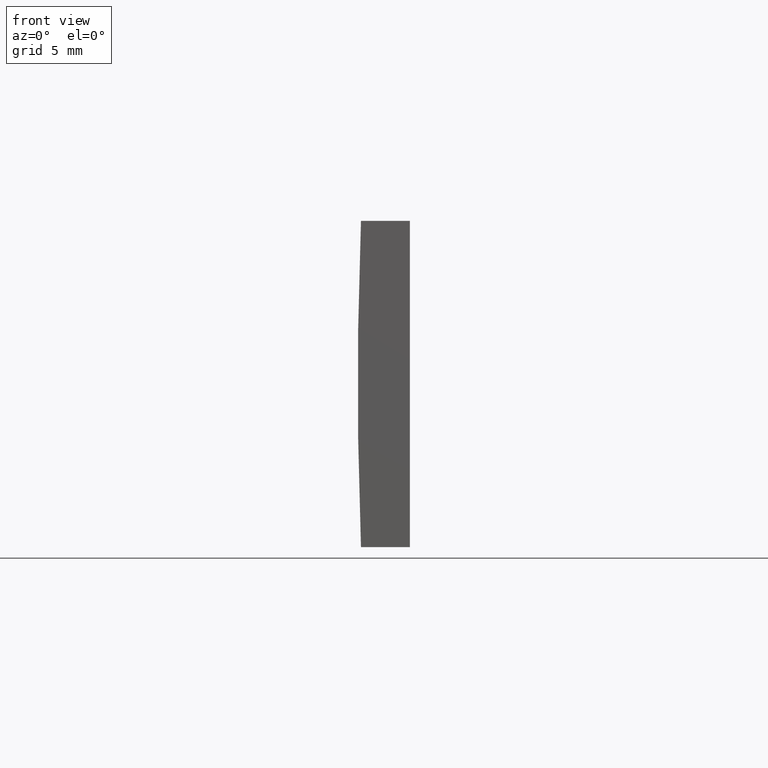
[diagram: clean part render]
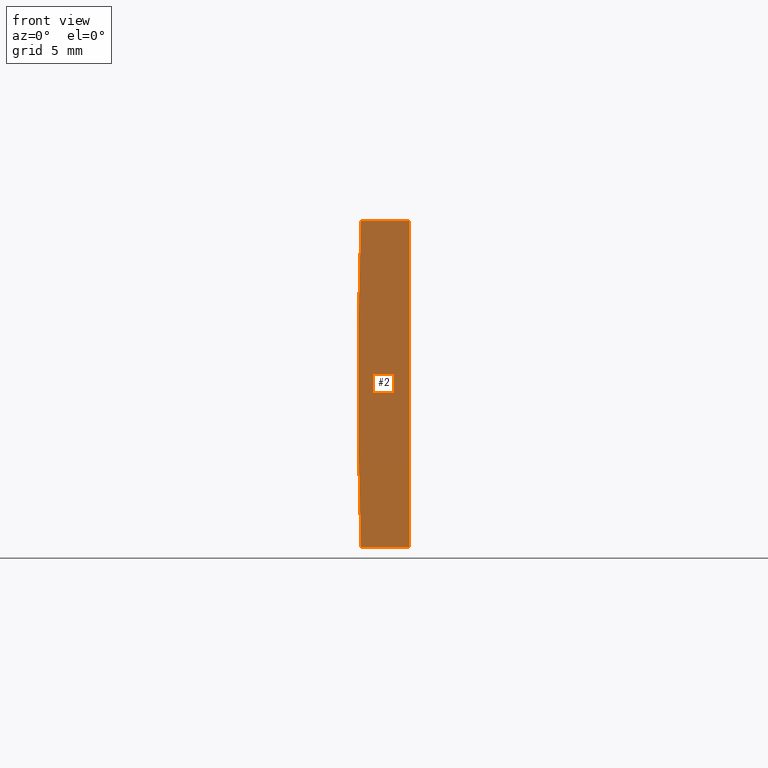
[diagram: same view with one face highlighted and labeled with its STEP entity id]
A machine part, front view. The second image highlights one B-rep face of the part: STEP entity #2.
In plain terms, the highlighted planar face has unit normal (0, 1, 0).
Its self-contained STEP definition (entity closure, byte-faithful):
#2 = ADVANCED_FACE ( 'NONE', ( #165 ), #25, .F. ) ;
#7 = VECTOR ( 'NONE', #144, 1000.000000000000000 ) ;
#11 = ORIENTED_EDGE ( 'NONE', *, *, #75, .F. ) ;
#12 = EDGE_CURVE ( 'NONE', #54, #113, #101, .T. ) ;
#15 = CARTESIAN_POINT ( 'NONE',  ( 4.355204334851265500, 0.0000000000000000000, 4.286263797015675000E-017 ) ) ;
#21 = LINE ( 'NONE', #35, #7 ) ;
#25 = PLANE ( 'NONE',  #182 ) ;
#35 = CARTESIAN_POINT ( 'NONE',  ( -253.9512996483044300, 0.0000000000000000000, 10.00000000000000000 ) ) ;
#37 = LINE ( 'NONE', #95, #57 ) ;
#40 = ORIENTED_EDGE ( 'NONE', *, *, #98, .F. ) ;
#42 = DIRECTION ( 'NONE',  ( -0.0000000000000000000, -0.0000000000000000000, -1.000000000000000000 ) ) ;
#45 = DIRECTION ( 'NONE',  ( -1.000000000000000000, -0.0000000000000000000, -1.968313692047762200E-014 ) ) ;
#48 = DIRECTION ( 'NONE',  ( 0.0000000000000000000, -0.0000000000000000000, 1.000000000000000000 ) ) ;
#54 = VERTEX_POINT ( 'NONE', #130 ) ;
#57 = VECTOR ( 'NONE', #42, 1000.000000000000000 ) ;
#69 = VERTEX_POINT ( 'NONE', #112 ) ;
#75 = EDGE_CURVE ( 'NONE', #113, #69, #202, .T. ) ;
#82 = CARTESIAN_POINT ( 'NONE',  ( -250.9547956651486800, 0.0000000000000000000, 10.00000000000000000 ) ) ;
#95 = CARTESIAN_POINT ( 'NONE',  ( -250.9547956651486800, 0.0000000000000000000, -9.999999999999941400 ) ) ;
#98 = EDGE_CURVE ( 'NONE', #157, #54, #37, .T. ) ;
#101 = LINE ( 'NONE', #181, #104 ) ;
#104 = VECTOR ( 'NONE', #45, 1000.000000000000000 ) ;
#105 = EDGE_CURVE ( 'NONE', #69, #157, #21, .T. ) ;
#112 = CARTESIAN_POINT ( 'NONE',  ( -253.9512996483044300, 0.0000000000000000000, 10.00000000000000000 ) ) ;
#113 = VERTEX_POINT ( 'NONE', #142 ) ;
#114 = ORIENTED_EDGE ( 'NONE', *, *, #12, .F. ) ;
#122 = CARTESIAN_POINT ( 'NONE',  ( 4.355204334851265500, 0.0000000000000000000, 4.286263797015675000E-017 ) ) ;
#130 = CARTESIAN_POINT ( 'NONE',  ( -250.9547956651486800, 0.0000000000000000000, -9.999999999999941400 ) ) ;
#138 = DIRECTION ( 'NONE',  ( 0.0000000000000000000, 1.000000000000000000, 0.0000000000000000000 ) ) ;
#142 = CARTESIAN_POINT ( 'NONE',  ( -253.9512996483044300, 0.0000000000000000000, -10.00000000000000000 ) ) ;
#144 = DIRECTION ( 'NONE',  ( 1.000000000000000000, 0.0000000000000000000, 0.0000000000000000000 ) ) ;
#150 = DIRECTION ( 'NONE',  ( 0.0000000000000000000, 0.0000000000000000000, 1.000000000000000000 ) ) ;
#157 = VERTEX_POINT ( 'NONE', #82 ) ;
#165 = FACE_OUTER_BOUND ( 'NONE', #200, .T. ) ;
#168 = ORIENTED_EDGE ( 'NONE', *, *, #105, .F. ) ;
#181 = CARTESIAN_POINT ( 'NONE',  ( -253.9512996483044300, 0.0000000000000000000, -10.00000000000000000 ) ) ;
#182 = AXIS2_PLACEMENT_3D ( 'NONE', #15, #185, #48 ) ;
#185 = DIRECTION ( 'NONE',  ( 0.0000000000000000000, 1.000000000000000000, 0.0000000000000000000 ) ) ;
#193 = AXIS2_PLACEMENT_3D ( 'NONE', #122, #138, #150 ) ;
#200 = EDGE_LOOP ( 'NONE', ( #11, #114, #40, #168 ) ) ;
#202 = CIRCLE ( 'NONE', #193, 258.5000000000000600 ) ;